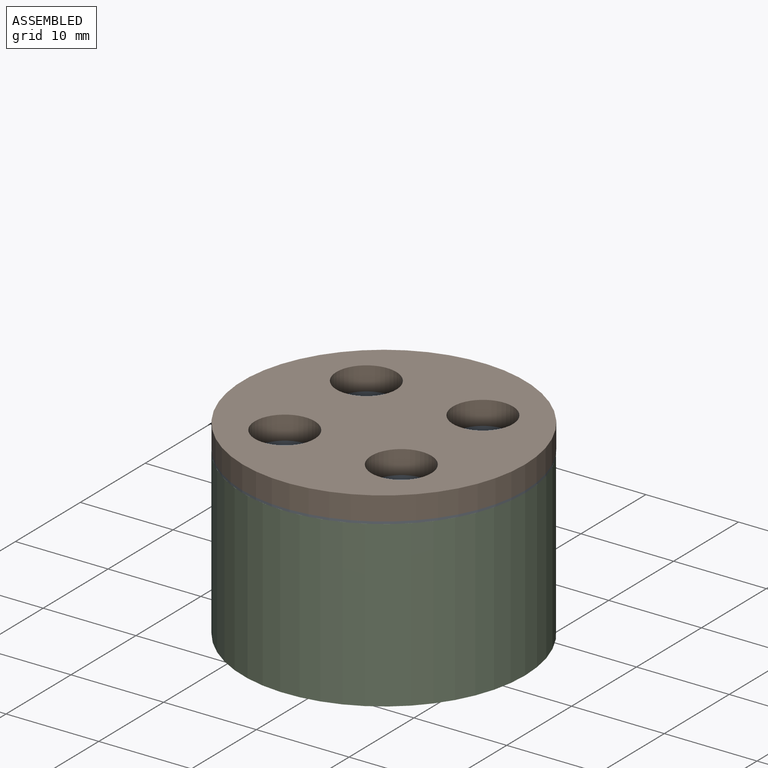
[diagram: assembled view]
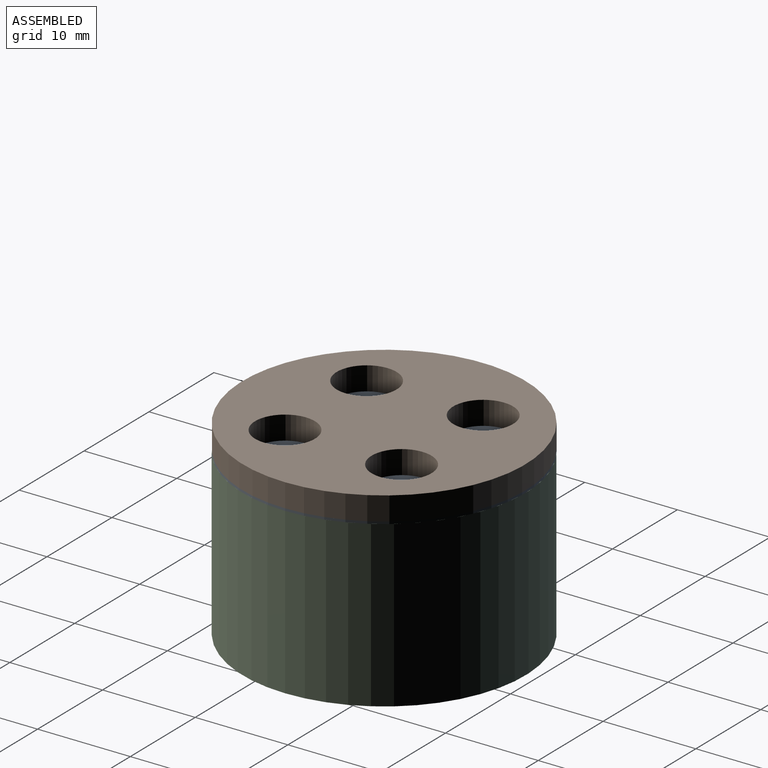
[diagram: assembled view, second angle]
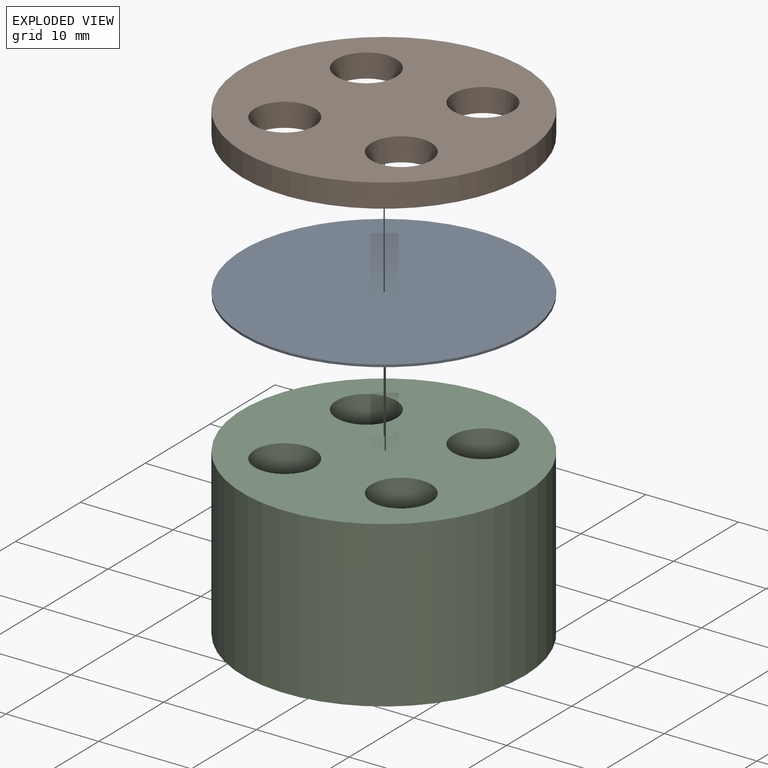
[diagram: exploded view]
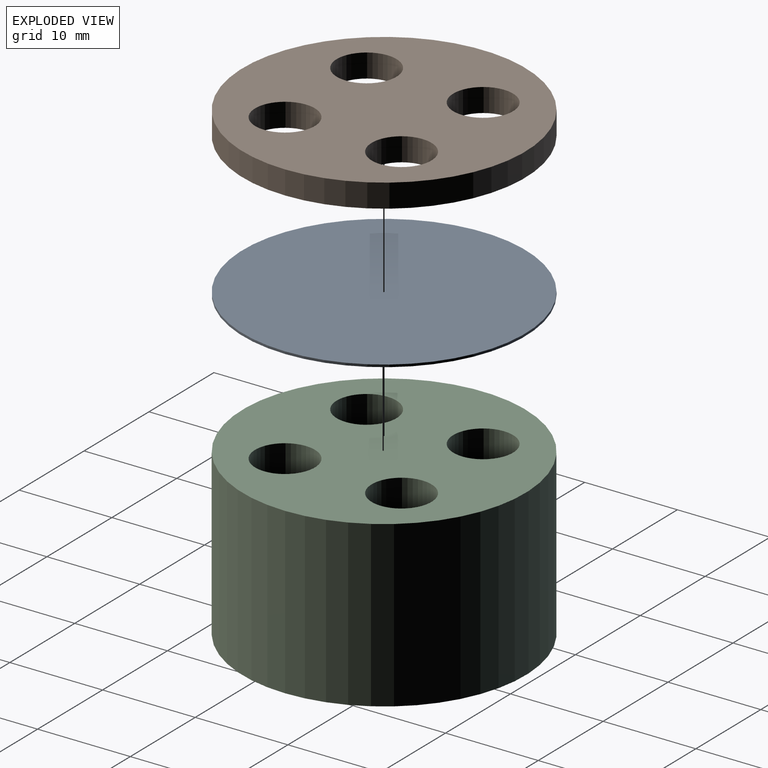
[diagram: exploded view, second angle]
ASSEMBLY  parts=3 mates=3
PART A: 3 faces, bbox 30.5x30.5x0.3 mm
  f0: cylinder r=15.24mm len=30.48mm, axis (0,0,-1), area 24.3mm2, adj f1,f2
  f1: plane 30.48x30.48mm, normal (0,0,1), area 729.7mm2, adj f0
  f2: plane 30.48x30.48mm, normal (0,0,-1), area 729.7mm2, adj f0
PART B: 7 faces, bbox 30.5x30.5x2.5 mm
  f0: plane 30.48x30.48mm, normal (0,0,1), area 598.9mm2, adj f2,f3,f4,f5,f6
  f1: plane 30.48x30.48mm, normal (0,0,-1), area 598.9mm2, adj f2,f3,f4,f5,f6
  f2: cylinder r=15.24mm len=30.48mm, axis (0,0,-1), area 243.2mm2, adj f0,f1
  f3: cylinder r=3.23mm len=6.45mm, axis (0,0,1), area 51.5mm2, adj f0,f1
  f4: cylinder r=3.23mm len=6.45mm, axis (0,0,1), area 51.5mm2, adj f0,f1
  f5: cylinder r=3.23mm len=6.45mm, axis (0,0,1), area 51.5mm2, adj f0,f1
  f6: cylinder r=3.23mm len=6.45mm, axis (0,0,1), area 51.5mm2, adj f0,f1
PART C: 7 faces, bbox 30.5x30.5x17.8 mm
  f0: plane 30.48x30.48mm, normal (0,0,1), area 598.9mm2, adj f2,f3,f4,f5,f6
  f1: plane 30.48x30.48mm, normal (0,0,-1), area 598.9mm2, adj f2,f3,f4,f5,f6
  f2: cylinder r=15.24mm len=30.48mm, axis (0,0,-1), area 1702.5mm2, adj f0,f1
  f3: cylinder r=3.23mm len=17.78mm, axis (0,0,1), area 360.4mm2, adj f0,f1
  f4: cylinder r=3.23mm len=17.78mm, axis (0,0,1), area 360.4mm2, adj f0,f1
  f5: cylinder r=3.23mm len=17.78mm, axis (0,0,1), area 360.4mm2, adj f0,f1
  f6: cylinder r=3.23mm len=17.78mm, axis (0,0,1), area 360.4mm2, adj f0,f1
PLACE A rot(axis=(1,0,0),180deg) t=(1.54,17.45,21.48)mm
PLACE B t=(1.54,17.45,22.87)mm
PLACE C t=(1.54,17.45,12.46)mm
MATE parallel A.f0 <-> B.f2  axis (0,0,1) through (1.54,17.45,21.6)mm
MATE parallel C.f2 <-> A.f0  axis (0,0,1) through (1.54,17.45,21.35)mm
MATE parallel C.f2 <-> A.f0  axis (0,0,1) through (1.54,17.45,21.35)mm
